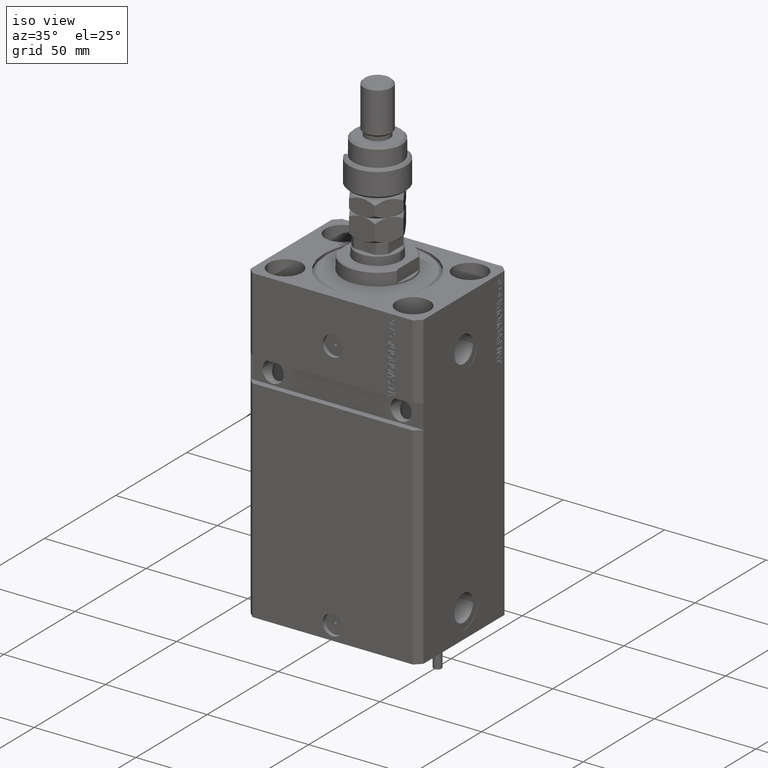
[diagram: clean part render]
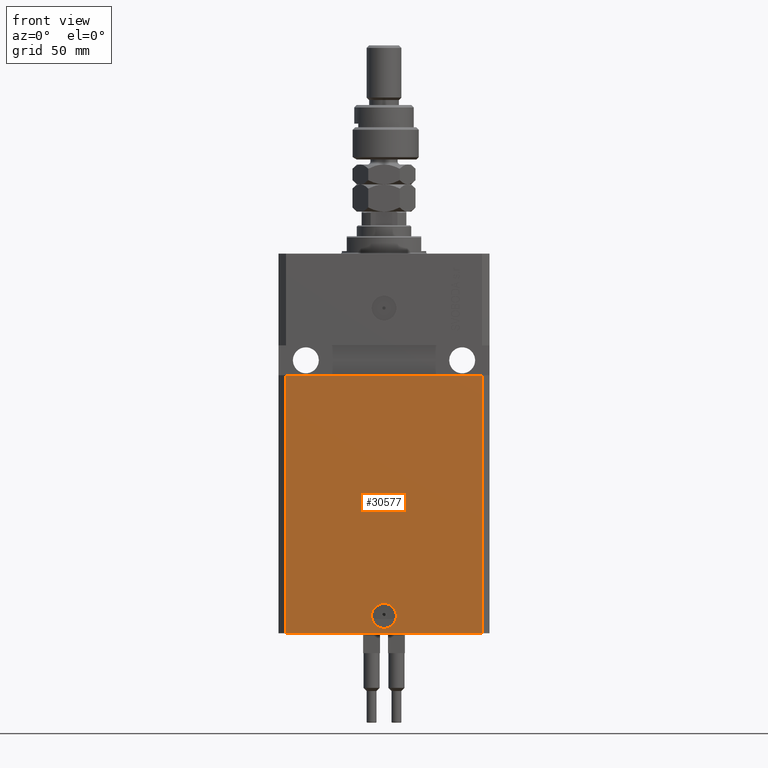
[diagram: tour spotlight — one face highlighted and labeled with its STEP entity id]
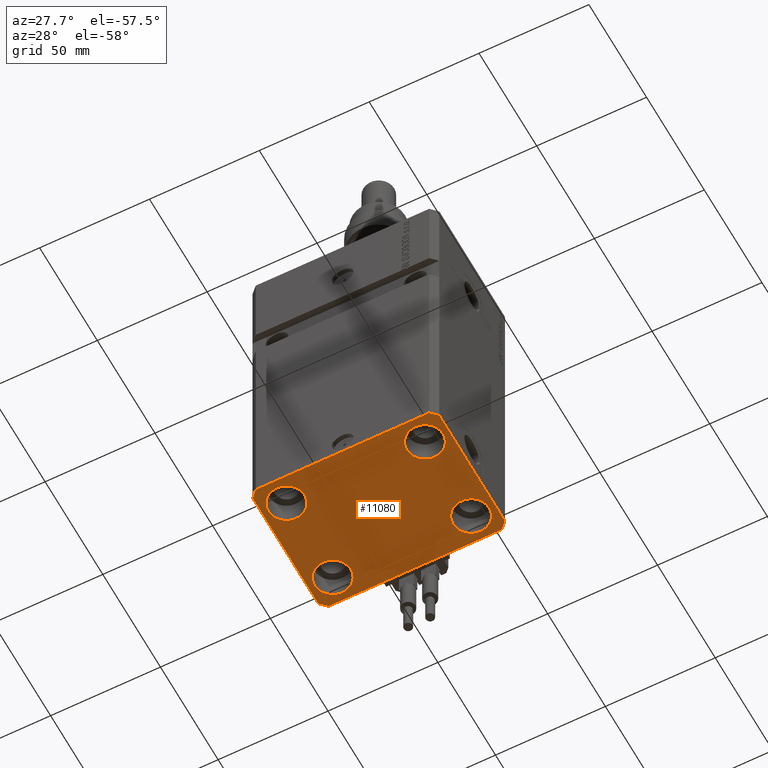
[diagram: tour spotlight — one face highlighted and labeled with its STEP entity id]
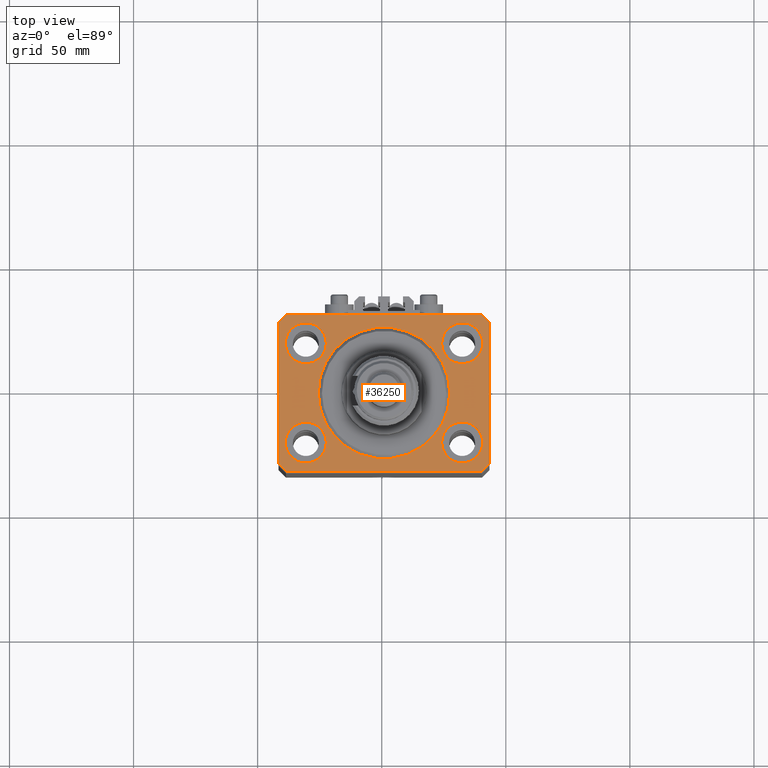
[diagram: tour spotlight — one face highlighted and labeled with its STEP entity id]
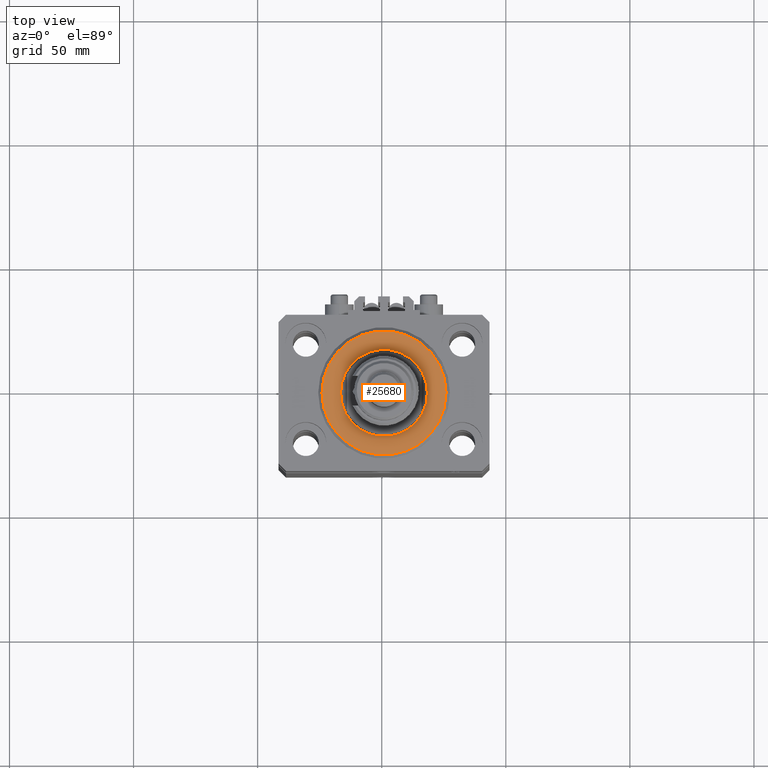
[diagram: tour spotlight — one face highlighted and labeled with its STEP entity id]
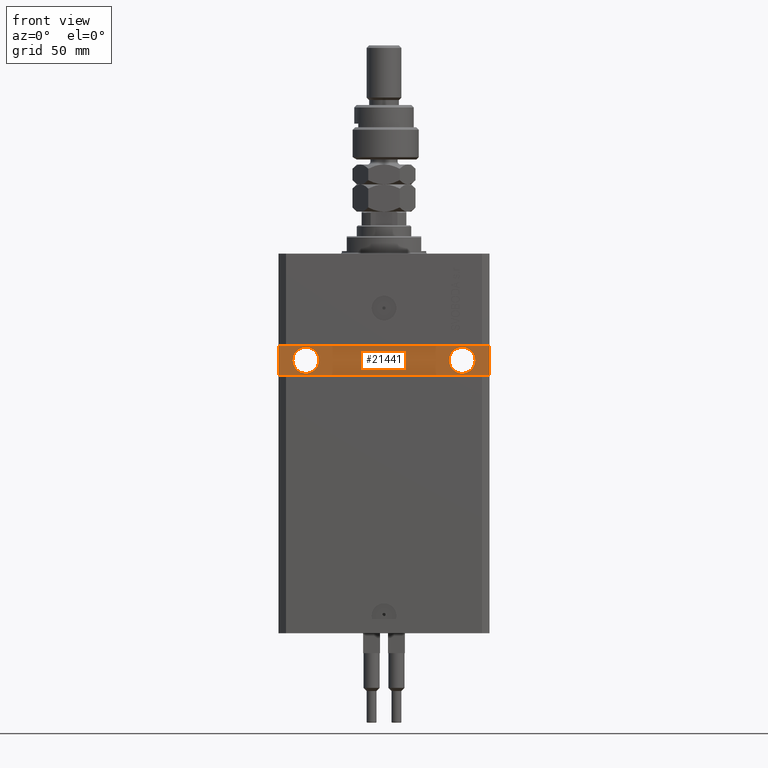
[diagram: tour spotlight — one face highlighted and labeled with its STEP entity id]
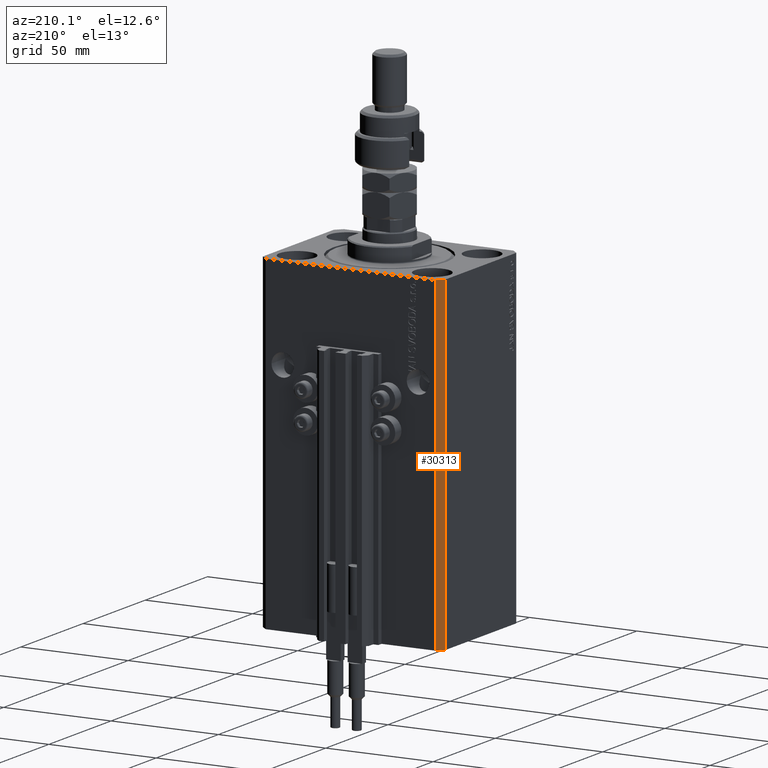
[diagram: tour spotlight — one face highlighted and labeled with its STEP entity id]
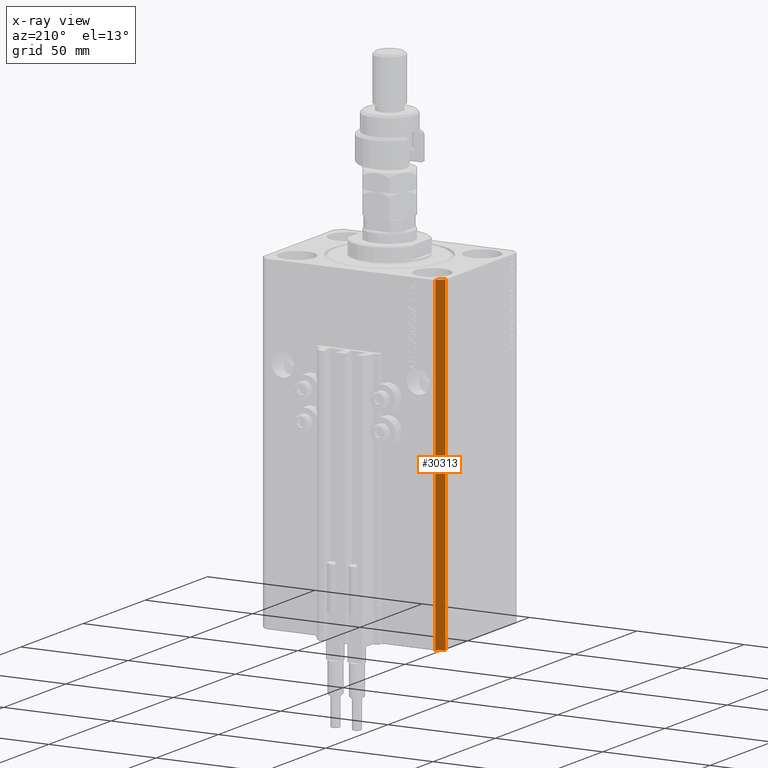
[diagram: x-ray of the same camera — body ghosted, this tour face saturated]
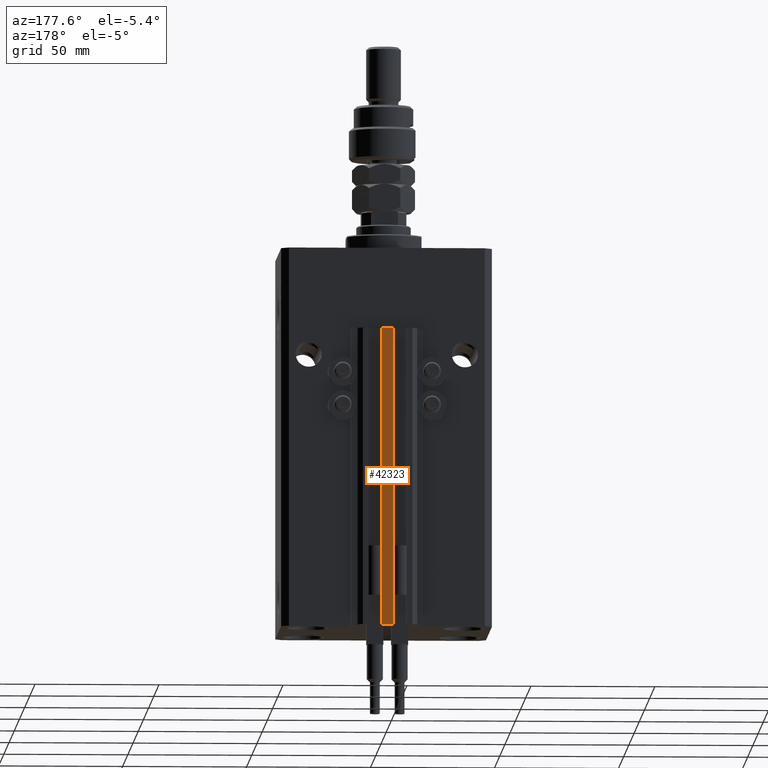
[diagram: tour spotlight — one face highlighted and labeled with its STEP entity id]
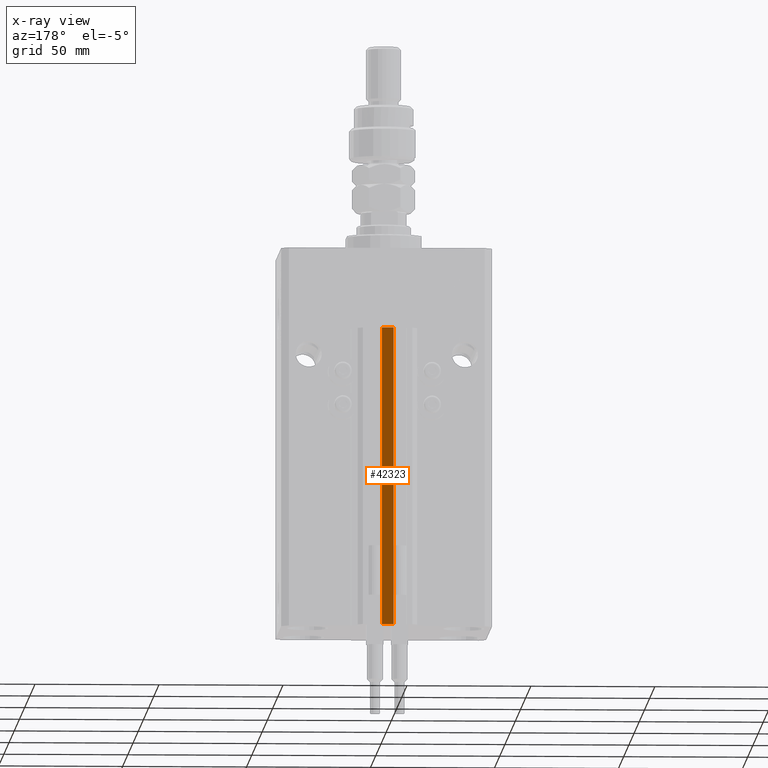
[diagram: x-ray of the same camera — body ghosted, this tour face saturated]
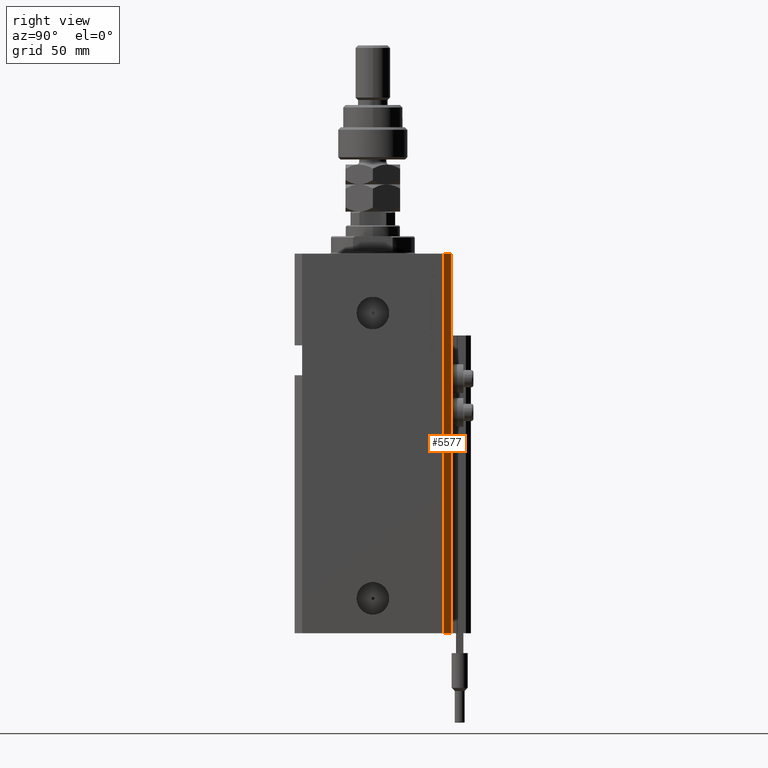
[diagram: tour spotlight — one face highlighted and labeled with its STEP entity id]
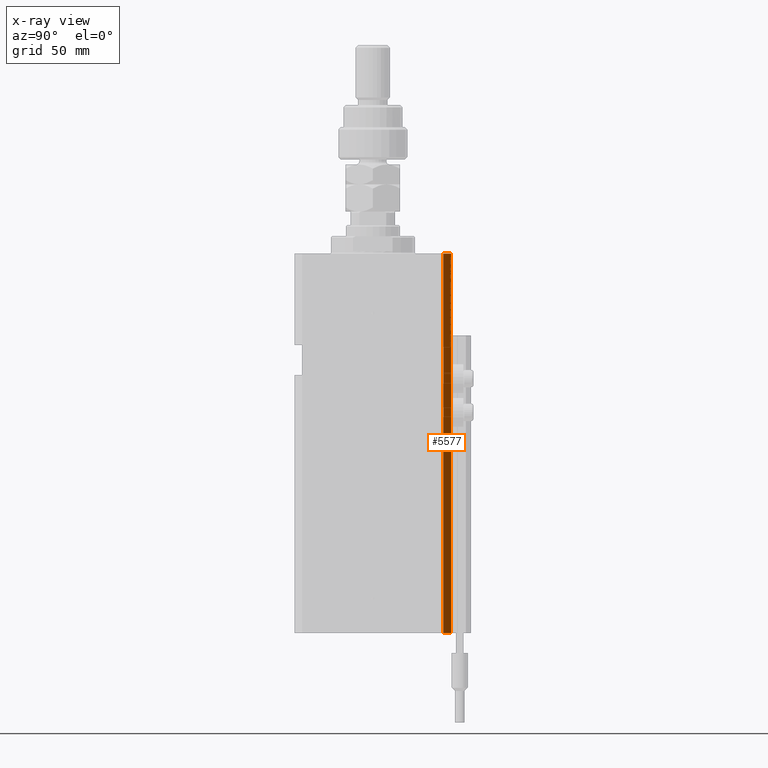
[diagram: x-ray of the same camera — body ghosted, this tour face saturated]
A machine part: a face-by-face anatomy tour. The part has 1224 B-rep faces; the first image is the clean iso view, then the 8 largest visible faces are spotlighted one at a time (largest first), each with its STEP entity span.

Face 1 — front view, entity #30577. In plain terms, the highlighted planar face has unit normal (0, -1, 0).
Definition (entity closure, byte-faithful):
#820 = VERTEX_POINT ( 'NONE', #39090 ) ;
#856 = CARTESIAN_POINT ( 'NONE',  ( -5.000000000000006217, -31.50000000000000000, -146.0000000000000000 ) ) ;
#5107 = DIRECTION ( 'NONE',  ( 1.000000000000000000, 0.000000000000000000, 0.000000000000000000 ) ) ;
#5143 = VECTOR ( 'NONE', #5107, 1000.000000000000000 ) ;
#5194 = DIRECTION ( 'NONE',  ( 0.000000000000000000, -1.000000000000000000, 0.000000000000000000 ) ) ;
#7426 = CARTESIAN_POINT ( 'NONE',  ( 0.000000000000000000, -31.50000000000000000, -146.0000000000000000 ) ) ;
#9163 = VERTEX_POINT ( 'NONE', #40405 ) ;
#9230 = VECTOR ( 'NONE', #47603, 1000.000000000000000 ) ;
#9306 = DIRECTION ( 'NONE',  ( 1.176083712526788232E-16, -1.000000000000000000, 0.000000000000000000 ) ) ;
#10176 = VECTOR ( 'NONE', #38440, 1000.000000000000000 ) ;
#10930 = LINE ( 'NONE', #19434, #10176 ) ;
#11315 = DIRECTION ( 'NONE',  ( 1.176083712526788232E-16, -1.000000000000000000, 0.000000000000000000 ) ) ;
#11379 = ORIENTED_EDGE ( 'NONE', *, *, #31789, .F. ) ;
#13017 = EDGE_CURVE ( 'NONE', #23649, #9163, #15967, .T. ) ;
#13241 = PLANE ( 'NONE',  #16018 ) ;
#13508 = VECTOR ( 'NONE', #19572, 1000.000000000000000 ) ;
#14425 = ORIENTED_EDGE ( 'NONE', *, *, #13017, .F. ) ;
#15967 = LINE ( 'NONE', #51211, #9230 ) ;
#16018 = AXIS2_PLACEMENT_3D ( 'NONE', #43863, #5194, #32199 ) ;
#16533 = CARTESIAN_POINT ( 'NONE',  ( -39.50000000000000711, -31.50000000000000000, -153.0000000000000000 ) ) ;
#19434 = CARTESIAN_POINT ( 'NONE',  ( -42.50000000000001421, -31.50000000000000711, -48.99999999999999289 ) ) ;
#19572 = DIRECTION ( 'NONE',  ( 0.000000000000000000, 0.000000000000000000, 1.000000000000000000 ) ) ;
#20996 = CIRCLE ( 'NONE', #31801, 5.000000000000006217 ) ;
#23649 = VERTEX_POINT ( 'NONE', #45667 ) ;
#24094 = EDGE_CURVE ( 'NONE', #23649, #44985, #32107, .T. ) ;
#24910 = FACE_BOUND ( 'NONE', #51209, .T. ) ;
#25119 = DIRECTION ( 'NONE',  ( 1.000000000000000000, 0.000000000000000000, 0.000000000000000000 ) ) ;
#28144 = EDGE_CURVE ( 'NONE', #9163, #820, #10930, .T. ) ;
#28279 = ORIENTED_EDGE ( 'NONE', *, *, #28144, .F. ) ;
#28427 = ORIENTED_EDGE ( 'NONE', *, *, #24094, .T. ) ;
#29671 = EDGE_CURVE ( 'NONE', #44985, #820, #31282, .T. ) ;
#30577 = ADVANCED_FACE ( 'NONE', ( #24910, #40762 ), #13241, .T. ) ;
#31033 = DIRECTION ( 'NONE',  ( 1.000000000000000000, 0.000000000000000000, 0.000000000000000000 ) ) ;
#31062 = EDGE_CURVE ( 'NONE', #38098, #35242, #20996, .T. ) ;
#31282 = LINE ( 'NONE', #39855, #13508 ) ;
#31789 = EDGE_CURVE ( 'NONE', #35242, #38098, #34313, .T. ) ;
#31801 = AXIS2_PLACEMENT_3D ( 'NONE', #7426, #11315, #31033 ) ;
#32107 = LINE ( 'NONE', #16533, #5143 ) ;
#32199 = DIRECTION ( 'NONE',  ( 0.000000000000000000, -0.000000000000000000, -1.000000000000000000 ) ) ;
#34313 = CIRCLE ( 'NONE', #47562, 5.000000000000006217 ) ;
#35242 = VERTEX_POINT ( 'NONE', #856 ) ;
#36465 = ORIENTED_EDGE ( 'NONE', *, *, #31062, .F. ) ;
#38098 = VERTEX_POINT ( 'NONE', #41745 ) ;
#38440 = DIRECTION ( 'NONE',  ( 1.000000000000000000, 1.632680918566406054E-16, 1.632680918566406054E-16 ) ) ;
#39090 = CARTESIAN_POINT ( 'NONE',  ( 39.50000000000000000, -31.49999999999999289, -48.99999999999997868 ) ) ;
#39253 = ORIENTED_EDGE ( 'NONE', *, *, #29671, .T. ) ;
#39855 = CARTESIAN_POINT ( 'NONE',  ( 39.50000000000000711, -31.50000000000000000, -153.0000000000000000 ) ) ;
#40405 = CARTESIAN_POINT ( 'NONE',  ( -39.50000000000000000, -31.50000000000000711, -48.99999999999999289 ) ) ;
#40762 = FACE_OUTER_BOUND ( 'NONE', #50978, .T. ) ;
#41745 = CARTESIAN_POINT ( 'NONE',  ( 5.000000000000006217, -31.50000000000000000, -146.0000000000000000 ) ) ;
#43863 = CARTESIAN_POINT ( 'NONE',  ( -39.50000000000000711, -31.50000000000000000, -153.0000000000000000 ) ) ;
#44587 = CARTESIAN_POINT ( 'NONE',  ( 0.000000000000000000, -31.50000000000000000, -146.0000000000000000 ) ) ;
#44985 = VERTEX_POINT ( 'NONE', #48294 ) ;
#45667 = CARTESIAN_POINT ( 'NONE',  ( -39.50000000000000711, -31.50000000000000000, -153.0000000000000000 ) ) ;
#47562 = AXIS2_PLACEMENT_3D ( 'NONE', #44587, #9306, #25119 ) ;
#47603 = DIRECTION ( 'NONE',  ( 0.000000000000000000, 0.000000000000000000, 1.000000000000000000 ) ) ;
#48294 = CARTESIAN_POINT ( 'NONE',  ( 39.50000000000000711, -31.50000000000000000, -153.0000000000000000 ) ) ;
#50978 = EDGE_LOOP ( 'NONE', ( #28279, #14425, #28427, #39253 ) ) ;
#51209 = EDGE_LOOP ( 'NONE', ( #36465, #11379 ) ) ;
#51211 = CARTESIAN_POINT ( 'NONE',  ( -39.50000000000000711, -31.50000000000000000, -153.0000000000000000 ) ) ;

Face 2 — auxiliary view, entity #11080. In plain terms, the highlighted planar face has unit normal (0, 0, 1).
Definition (entity closure, byte-faithful):
#192 = VECTOR ( 'NONE', #44739, 1000.000000000000000 ) ;
#260 = CIRCLE ( 'NONE', #1123, 8.250000000000000000 ) ;
#401 = DIRECTION ( 'NONE',  ( -0.000000000000000000, -0.000000000000000000, 1.000000000000000000 ) ) ;
#419 = VERTEX_POINT ( 'NONE', #756 ) ;
#756 = CARTESIAN_POINT ( 'NONE',  ( -23.25000000000000000, 20.00000000000000000, -153.0000000000000000 ) ) ;
#762 = DIRECTION ( 'NONE',  ( -0.000000000000000000, -0.000000000000000000, 1.000000000000000000 ) ) ;
#872 = ORIENTED_EDGE ( 'NONE', *, *, #16954, .F. ) ;
#1123 = AXIS2_PLACEMENT_3D ( 'NONE', #44759, #5062, #17258 ) ;
#1175 = DIRECTION ( 'NONE',  ( 1.000000000000000000, 0.000000000000000000, 0.000000000000000000 ) ) ;
#1833 = ORIENTED_EDGE ( 'NONE', *, *, #30168, .F. ) ;
#2055 = DIRECTION ( 'NONE',  ( -0.000000000000000000, -0.000000000000000000, 1.000000000000000000 ) ) ;
#2136 = LINE ( 'NONE', #13558, #3282 ) ;
#2637 = DIRECTION ( 'NONE',  ( -1.000000000000000000, 0.000000000000000000, 0.000000000000000000 ) ) ;
#3020 = AXIS2_PLACEMENT_3D ( 'NONE', #37609, #2055, #49495 ) ;
#3261 = DIRECTION ( 'NONE',  ( 1.000000000000000000, 0.000000000000000000, 0.000000000000000000 ) ) ;
#3282 = VECTOR ( 'NONE', #25489, 1000.000000000000000 ) ;
#3390 = VECTOR ( 'NONE', #33579, 1000.000000000000000 ) ;
#3393 = LINE ( 'NONE', #15588, #3390 ) ;
#3452 = LINE ( 'NONE', #23945, #49141 ) ;
#4211 = VERTEX_POINT ( 'NONE', #10744 ) ;
#5053 = DIRECTION ( 'NONE',  ( -0.000000000000000000, -0.000000000000000000, 1.000000000000000000 ) ) ;
#5062 = DIRECTION ( 'NONE',  ( -0.000000000000000000, -0.000000000000000000, 1.000000000000000000 ) ) ;
#5104 = CIRCLE ( 'NONE', #26605, 8.250000000000000000 ) ;
#5107 = DIRECTION ( 'NONE',  ( 1.000000000000000000, 0.000000000000000000, 0.000000000000000000 ) ) ;
#5143 = VECTOR ( 'NONE', #5107, 1000.000000000000000 ) ;
#7049 = FACE_BOUND ( 'NONE', #32258, .T. ) ;
#7275 = EDGE_CURVE ( 'NONE', #13567, #34149, #49718, .T. ) ;
#7560 = FACE_OUTER_BOUND ( 'NONE', #41415, .T. ) ;
#7866 = DIRECTION ( 'NONE',  ( -0.7071067811865356934, 0.7071067811865594521, 0.000000000000000000 ) ) ;
#7978 = CARTESIAN_POINT ( 'NONE',  ( 31.50000000000000000, -20.00000000000000000, -153.0000000000000000 ) ) ;
#8783 = CARTESIAN_POINT ( 'NONE',  ( 31.50000000000000000, 20.00000000000001066, -153.0000000000000000 ) ) ;
#8839 = CIRCLE ( 'NONE', #3020, 8.250000000000000000 ) ;
#8946 = CARTESIAN_POINT ( 'NONE',  ( -31.50000000000000000, 20.00000000000000000, -153.0000000000000000 ) ) ;
#9815 = DIRECTION ( 'NONE',  ( -0.7071067811865471286, -0.7071067811865479058, 0.000000000000000000 ) ) ;
#9930 = CIRCLE ( 'NONE', #38936, 8.249999999999992895 ) ;
#10171 = EDGE_CURVE ( 'NONE', #20531, #4211, #2136, .T. ) ;
#10182 = AXIS2_PLACEMENT_3D ( 'NONE', #7978, #5053, #43271 ) ;
#10633 = EDGE_CURVE ( 'NONE', #44485, #29315, #9930, .T. ) ;
#10744 = CARTESIAN_POINT ( 'NONE',  ( 42.50000000000051870, 28.49999999999995381, -153.0000000000000000 ) ) ;
#11080 = ADVANCED_FACE ( 'NONE', ( #7049, #35320, #35070, #46488, #7560 ), #14835, .F. ) ;
#11663 = DIRECTION ( 'NONE',  ( -0.000000000000000000, -0.000000000000000000, 1.000000000000000000 ) ) ;
#11729 = VECTOR ( 'NONE', #2637, 1000.000000000000000 ) ;
#12267 = DIRECTION ( 'NONE',  ( 1.000000000000000000, 0.000000000000000000, 0.000000000000000000 ) ) ;
#12480 = LINE ( 'NONE', #33223, #50624 ) ;
#12506 = CIRCLE ( 'NONE', #41521, 8.249999999999992895 ) ;
#12916 = ORIENTED_EDGE ( 'NONE', *, *, #10633, .T. ) ;
#12975 = AXIS2_PLACEMENT_3D ( 'NONE', #47189, #11663, #23575 ) ;
#12991 = DIRECTION ( 'NONE',  ( 0.7071067811865483499, 0.7071067811865466846, 0.000000000000000000 ) ) ;
#13268 = EDGE_CURVE ( 'NONE', #23674, #23649, #3393, .T. ) ;
#13389 = VERTEX_POINT ( 'NONE', #32958 ) ;
#13558 = CARTESIAN_POINT ( 'NONE',  ( 42.50000000000000711, -28.50000000000000355, -153.0000000000000000 ) ) ;
#13567 = VERTEX_POINT ( 'NONE', #51282 ) ;
#14174 = DIRECTION ( 'NONE',  ( -0.000000000000000000, -0.000000000000000000, 1.000000000000000000 ) ) ;
#14835 = PLANE ( 'NONE',  #38966 ) ;
#15588 = CARTESIAN_POINT ( 'NONE',  ( -42.50000000000000000, -28.50000000000000000, -153.0000000000000000 ) ) ;
#16533 = CARTESIAN_POINT ( 'NONE',  ( -39.50000000000000711, -31.50000000000000000, -153.0000000000000000 ) ) ;
#16726 = EDGE_CURVE ( 'NONE', #29315, #44485, #12506, .T. ) ;
#16954 = EDGE_CURVE ( 'NONE', #19072, #13567, #18196, .T. ) ;
#17258 = DIRECTION ( 'NONE',  ( 1.000000000000000000, 0.000000000000000000, 0.000000000000000000 ) ) ;
#17376 = EDGE_CURVE ( 'NONE', #17623, #41520, #5104, .T. ) ;
#17623 = VERTEX_POINT ( 'NONE', #50646 ) ;
#18196 = LINE ( 'NONE', #41324, #11729 ) ;
#19072 = VERTEX_POINT ( 'NONE', #41362 ) ;
#19462 = DIRECTION ( 'NONE',  ( 0.000000000000000000, 0.000000000000000000, 1.000000000000000000 ) ) ;
#20082 = CARTESIAN_POINT ( 'NONE',  ( -42.50000000000000000, 28.50000000000000000, -153.0000000000000000 ) ) ;
#20149 = CIRCLE ( 'NONE', #45066, 8.250000000000000000 ) ;
#20531 = VERTEX_POINT ( 'NONE', #44095 ) ;
#20543 = CARTESIAN_POINT ( 'NONE',  ( 39.74999999999999289, -20.00000000000000000, -153.0000000000000000 ) ) ;
#22130 = ORIENTED_EDGE ( 'NONE', *, *, #13268, .F. ) ;
#22228 = CARTESIAN_POINT ( 'NONE',  ( -39.50000000000000711, 31.50000000000000000, -153.0000000000000000 ) ) ;
#22346 = ORIENTED_EDGE ( 'NONE', *, *, #10171, .F. ) ;
#22550 = CARTESIAN_POINT ( 'NONE',  ( -42.50000000000000000, -28.50000000000000000, -153.0000000000000000 ) ) ;
#22602 = EDGE_CURVE ( 'NONE', #44985, #20531, #12480, .T. ) ;
#23575 = DIRECTION ( 'NONE',  ( 1.000000000000000000, 0.000000000000000000, 0.000000000000000000 ) ) ;
#23649 = VERTEX_POINT ( 'NONE', #45667 ) ;
#23674 = VERTEX_POINT ( 'NONE', #22550 ) ;
#23945 = CARTESIAN_POINT ( 'NONE',  ( 42.50000000000051870, 28.49999999999995381, -153.0000000000000000 ) ) ;
#24094 = EDGE_CURVE ( 'NONE', #23649, #44985, #32107, .T. ) ;
#24129 = ORIENTED_EDGE ( 'NONE', *, *, #24458, .F. ) ;
#24458 = EDGE_CURVE ( 'NONE', #34149, #23674, #32810, .T. ) ;
#25475 = EDGE_CURVE ( 'NONE', #45854, #32121, #25908, .T. ) ;
#25489 = DIRECTION ( 'NONE',  ( 8.886653596232072440E-15, 1.000000000000000000, 0.000000000000000000 ) ) ;
#25679 = ORIENTED_EDGE ( 'NONE', *, *, #49794, .T. ) ;
#25908 = CIRCLE ( 'NONE', #10182, 8.249999999999992895 ) ;
#26570 = EDGE_CURVE ( 'NONE', #13389, #419, #260, .T. ) ;
#26605 = AXIS2_PLACEMENT_3D ( 'NONE', #38826, #14174, #3261 ) ;
#26760 = CARTESIAN_POINT ( 'NONE',  ( -23.25000000000000000, -20.00000000000000000, -153.0000000000000000 ) ) ;
#27034 = CIRCLE ( 'NONE', #12975, 8.249999999999992895 ) ;
#27275 = CARTESIAN_POINT ( 'NONE',  ( 0.000000000000000000, 0.000000000000000000, -153.0000000000000000 ) ) ;
#27292 = CARTESIAN_POINT ( 'NONE',  ( -42.50000000000000000, 28.50000000000000000, -153.0000000000000000 ) ) ;
#27542 = EDGE_CURVE ( 'NONE', #419, #13389, #20149, .T. ) ;
#27825 = DIRECTION ( 'NONE',  ( -0.000000000000000000, -0.000000000000000000, 1.000000000000000000 ) ) ;
#28138 = ORIENTED_EDGE ( 'NONE', *, *, #24094, .F. ) ;
#29315 = VERTEX_POINT ( 'NONE', #51276 ) ;
#30168 = EDGE_CURVE ( 'NONE', #4211, #19072, #3452, .T. ) ;
#32107 = LINE ( 'NONE', #16533, #5143 ) ;
#32121 = VERTEX_POINT ( 'NONE', #35976 ) ;
#32148 = DIRECTION ( 'NONE',  ( 1.000000000000000000, 0.000000000000000000, 0.000000000000000000 ) ) ;
#32258 = EDGE_LOOP ( 'NONE', ( #43548, #25679 ) ) ;
#32810 = LINE ( 'NONE', #20082, #192 ) ;
#32958 = CARTESIAN_POINT ( 'NONE',  ( -39.75000000000000000, 20.00000000000000000, -153.0000000000000000 ) ) ;
#33223 = CARTESIAN_POINT ( 'NONE',  ( 39.50000000000000711, -31.50000000000000000, -153.0000000000000000 ) ) ;
#33579 = DIRECTION ( 'NONE',  ( 0.7071067811865471286, -0.7071067811865479058, 0.000000000000000000 ) ) ;
#33785 = ORIENTED_EDGE ( 'NONE', *, *, #7275, .F. ) ;
#34149 = VERTEX_POINT ( 'NONE', #27292 ) ;
#34685 = ORIENTED_EDGE ( 'NONE', *, *, #25475, .T. ) ;
#34852 = CARTESIAN_POINT ( 'NONE',  ( 31.50000000000000000, 20.00000000000001066, -153.0000000000000000 ) ) ;
#35070 = FACE_BOUND ( 'NONE', #40203, .T. ) ;
#35320 = FACE_BOUND ( 'NONE', #41509, .T. ) ;
#35976 = CARTESIAN_POINT ( 'NONE',  ( 23.25000000000000355, -20.00000000000000000, -153.0000000000000000 ) ) ;
#36401 = EDGE_LOOP ( 'NONE', ( #38969, #42184 ) ) ;
#37030 = CARTESIAN_POINT ( 'NONE',  ( 39.74999999999999289, 20.00000000000001066, -153.0000000000000000 ) ) ;
#37079 = EDGE_CURVE ( 'NONE', #32121, #45854, #27034, .T. ) ;
#37609 = CARTESIAN_POINT ( 'NONE',  ( -31.50000000000000000, -20.00000000000000000, -153.0000000000000000 ) ) ;
#38826 = CARTESIAN_POINT ( 'NONE',  ( -31.50000000000000000, -20.00000000000000000, -153.0000000000000000 ) ) ;
#38936 = AXIS2_PLACEMENT_3D ( 'NONE', #8783, #762, #32148 ) ;
#38966 = AXIS2_PLACEMENT_3D ( 'NONE', #27275, #19462, #39488 ) ;
#38969 = ORIENTED_EDGE ( 'NONE', *, *, #26570, .T. ) ;
#39488 = DIRECTION ( 'NONE',  ( 1.000000000000000000, 0.000000000000000000, -0.000000000000000000 ) ) ;
#40203 = EDGE_LOOP ( 'NONE', ( #41126, #12916 ) ) ;
#41126 = ORIENTED_EDGE ( 'NONE', *, *, #16726, .T. ) ;
#41324 = CARTESIAN_POINT ( 'NONE',  ( 39.50000000000056843, 31.50000000000000000, -153.0000000000000000 ) ) ;
#41362 = CARTESIAN_POINT ( 'NONE',  ( 39.50000000000056843, 31.50000000000000000, -153.0000000000000000 ) ) ;
#41415 = EDGE_LOOP ( 'NONE', ( #872, #1833, #22346, #46811, #28138, #22130, #24129, #33785 ) ) ;
#41509 = EDGE_LOOP ( 'NONE', ( #45004, #34685 ) ) ;
#41520 = VERTEX_POINT ( 'NONE', #26760 ) ;
#41521 = AXIS2_PLACEMENT_3D ( 'NONE', #34852, #27825, #12267 ) ;
#42184 = ORIENTED_EDGE ( 'NONE', *, *, #27542, .T. ) ;
#43271 = DIRECTION ( 'NONE',  ( 1.000000000000000000, 0.000000000000000000, 0.000000000000000000 ) ) ;
#43548 = ORIENTED_EDGE ( 'NONE', *, *, #17376, .T. ) ;
#44095 = CARTESIAN_POINT ( 'NONE',  ( 42.50000000000000711, -28.50000000000000355, -153.0000000000000000 ) ) ;
#44485 = VERTEX_POINT ( 'NONE', #37030 ) ;
#44739 = DIRECTION ( 'NONE',  ( 0.000000000000000000, -1.000000000000000000, 0.000000000000000000 ) ) ;
#44759 = CARTESIAN_POINT ( 'NONE',  ( -31.50000000000000000, 20.00000000000000000, -153.0000000000000000 ) ) ;
#44985 = VERTEX_POINT ( 'NONE', #48294 ) ;
#45004 = ORIENTED_EDGE ( 'NONE', *, *, #37079, .T. ) ;
#45066 = AXIS2_PLACEMENT_3D ( 'NONE', #8946, #401, #1175 ) ;
#45667 = CARTESIAN_POINT ( 'NONE',  ( -39.50000000000000711, -31.50000000000000000, -153.0000000000000000 ) ) ;
#45854 = VERTEX_POINT ( 'NONE', #20543 ) ;
#46488 = FACE_BOUND ( 'NONE', #36401, .T. ) ;
#46811 = ORIENTED_EDGE ( 'NONE', *, *, #22602, .F. ) ;
#47189 = CARTESIAN_POINT ( 'NONE',  ( 31.50000000000000000, -20.00000000000000000, -153.0000000000000000 ) ) ;
#48294 = CARTESIAN_POINT ( 'NONE',  ( 39.50000000000000711, -31.50000000000000000, -153.0000000000000000 ) ) ;
#49141 = VECTOR ( 'NONE', #7866, 1000.000000000000114 ) ;
#49495 = DIRECTION ( 'NONE',  ( 1.000000000000000000, 0.000000000000000000, 0.000000000000000000 ) ) ;
#49718 = LINE ( 'NONE', #22228, #51208 ) ;
#49794 = EDGE_CURVE ( 'NONE', #41520, #17623, #8839, .T. ) ;
#50624 = VECTOR ( 'NONE', #12991, 1000.000000000000000 ) ;
#50646 = CARTESIAN_POINT ( 'NONE',  ( -39.75000000000000000, -20.00000000000000000, -153.0000000000000000 ) ) ;
#51208 = VECTOR ( 'NONE', #9815, 1000.000000000000000 ) ;
#51276 = CARTESIAN_POINT ( 'NONE',  ( 23.25000000000000355, 20.00000000000001066, -153.0000000000000000 ) ) ;
#51282 = CARTESIAN_POINT ( 'NONE',  ( -39.50000000000000711, 31.50000000000000000, -153.0000000000000000 ) ) ;

Face 3 — top view, entity #36250. In plain terms, the highlighted planar face has unit normal (0, 0, 1).
Definition (entity closure, byte-faithful):
#282 = CARTESIAN_POINT ( 'NONE',  ( 39.74999999999999289, -20.00000000000000000, 0.000000000000000000 ) ) ;
#420 = EDGE_CURVE ( 'NONE', #8402, #24802, #36293, .T. ) ;
#677 = EDGE_CURVE ( 'NONE', #6530, #18262, #25865, .T. ) ;
#774 = CARTESIAN_POINT ( 'NONE',  ( 0.000000000000000000, 0.000000000000000000, 0.000000000000000000 ) ) ;
#1198 = CARTESIAN_POINT ( 'NONE',  ( 31.50000000000000000, -20.00000000000000000, 0.000000000000000000 ) ) ;
#1396 = CARTESIAN_POINT ( 'NONE',  ( -39.75000000000000000, -20.00000000000000000, 0.000000000000000000 ) ) ;
#1399 = DIRECTION ( 'NONE',  ( 0.000000000000000000, 0.000000000000000000, 1.000000000000000000 ) ) ;
#1724 = CARTESIAN_POINT ( 'NONE',  ( 31.50000000000000000, 20.00000000000001066, 0.000000000000000000 ) ) ;
#1886 = ORIENTED_EDGE ( 'NONE', *, *, #26913, .F. ) ;
#1898 = VERTEX_POINT ( 'NONE', #19113 ) ;
#1923 = CIRCLE ( 'NONE', #8545, 8.250000000000000000 ) ;
#2016 = DIRECTION ( 'NONE',  ( 0.7071067811865483499, 0.7071067811865466846, 0.000000000000000000 ) ) ;
#2217 = CARTESIAN_POINT ( 'NONE',  ( 42.50000000000051870, 28.49999999999995381, 0.000000000000000000 ) ) ;
#2740 = LINE ( 'NONE', #42183, #37074 ) ;
#3176 = DIRECTION ( 'NONE',  ( 0.000000000000000000, 0.000000000000000000, 1.000000000000000000 ) ) ;
#3741 = AXIS2_PLACEMENT_3D ( 'NONE', #11219, #3176, #11731 ) ;
#4237 = ORIENTED_EDGE ( 'NONE', *, *, #9257, .F. ) ;
#4274 = CARTESIAN_POINT ( 'NONE',  ( 26.50000000000000355, 0.000000000000000000, 0.000000000000000000 ) ) ;
#4376 = PLANE ( 'NONE',  #34492 ) ;
#4398 = DIRECTION ( 'NONE',  ( -1.000000000000000000, 0.000000000000000000, 0.000000000000000000 ) ) ;
#5009 = VERTEX_POINT ( 'NONE', #16872 ) ;
#5036 = VERTEX_POINT ( 'NONE', #32701 ) ;
#5791 = DIRECTION ( 'NONE',  ( 1.000000000000000000, 0.000000000000000000, 0.000000000000000000 ) ) ;
#6264 = DIRECTION ( 'NONE',  ( 0.000000000000000000, 0.000000000000000000, 1.000000000000000000 ) ) ;
#6530 = VERTEX_POINT ( 'NONE', #28174 ) ;
#6552 = CIRCLE ( 'NONE', #16486, 8.250000000000000000 ) ;
#7164 = CARTESIAN_POINT ( 'NONE',  ( 39.50000000000000711, -31.50000000000000000, 0.000000000000000000 ) ) ;
#7442 = CARTESIAN_POINT ( 'NONE',  ( -39.50000000000000711, 31.50000000000000000, 0.000000000000000000 ) ) ;
#7597 = EDGE_CURVE ( 'NONE', #10886, #35432, #14771, .T. ) ;
#8402 = VERTEX_POINT ( 'NONE', #2217 ) ;
#8545 = AXIS2_PLACEMENT_3D ( 'NONE', #31714, #35865, #40802 ) ;
#8650 = EDGE_CURVE ( 'NONE', #42339, #47286, #6552, .T. ) ;
#8653 = AXIS2_PLACEMENT_3D ( 'NONE', #31626, #31366, #47429 ) ;
#8950 = EDGE_LOOP ( 'NONE', ( #1886, #26711 ) ) ;
#9257 = EDGE_CURVE ( 'NONE', #35432, #10886, #9896, .T. ) ;
#9896 = CIRCLE ( 'NONE', #21456, 8.249999999999992895 ) ;
#10534 = DIRECTION ( 'NONE',  ( 0.000000000000000000, -1.000000000000000000, 0.000000000000000000 ) ) ;
#10830 = DIRECTION ( 'NONE',  ( 1.000000000000000000, 0.000000000000000000, 0.000000000000000000 ) ) ;
#10886 = VERTEX_POINT ( 'NONE', #31819 ) ;
#11219 = CARTESIAN_POINT ( 'NONE',  ( 0.000000000000000000, 0.000000000000000000, 0.000000000000000000 ) ) ;
#11577 = EDGE_CURVE ( 'NONE', #1898, #6530, #42235, .T. ) ;
#11731 = DIRECTION ( 'NONE',  ( 1.000000000000000000, 0.000000000000000000, 0.000000000000000000 ) ) ;
#11880 = ORIENTED_EDGE ( 'NONE', *, *, #29516, .T. ) ;
#12101 = VERTEX_POINT ( 'NONE', #24751 ) ;
#12144 = VECTOR ( 'NONE', #24077, 1000.000000000000114 ) ;
#12191 = CARTESIAN_POINT ( 'NONE',  ( 23.25000000000000355, 20.00000000000001066, 0.000000000000000000 ) ) ;
#12243 = DIRECTION ( 'NONE',  ( -0.7071067811865471286, -0.7071067811865479058, 0.000000000000000000 ) ) ;
#12419 = VECTOR ( 'NONE', #12243, 1000.000000000000000 ) ;
#12766 = CARTESIAN_POINT ( 'NONE',  ( 39.50000000000056843, 31.50000000000000000, 0.000000000000000000 ) ) ;
#13120 = DIRECTION ( 'NONE',  ( 1.000000000000000000, 0.000000000000000000, 0.000000000000000000 ) ) ;
#13577 = CARTESIAN_POINT ( 'NONE',  ( -23.25000000000000000, -20.00000000000000000, 0.000000000000000000 ) ) ;
#14019 = EDGE_CURVE ( 'NONE', #30269, #17068, #20011, .T. ) ;
#14164 = LINE ( 'NONE', #41937, #22416 ) ;
#14771 = CIRCLE ( 'NONE', #35521, 8.249999999999992895 ) ;
#14793 = DIRECTION ( 'NONE',  ( 0.000000000000000000, 0.000000000000000000, 1.000000000000000000 ) ) ;
#15192 = LINE ( 'NONE', #30776, #38369 ) ;
#15582 = DIRECTION ( 'NONE',  ( 1.000000000000000000, 0.000000000000000000, 0.000000000000000000 ) ) ;
#15597 = CARTESIAN_POINT ( 'NONE',  ( 31.50000000000000000, 20.00000000000001066, 0.000000000000000000 ) ) ;
#15776 = EDGE_CURVE ( 'NONE', #5036, #5009, #14164, .T. ) ;
#16060 = FACE_BOUND ( 'NONE', #8950, .T. ) ;
#16486 = AXIS2_PLACEMENT_3D ( 'NONE', #25000, #1399, #5791 ) ;
#16509 = ORIENTED_EDGE ( 'NONE', *, *, #7597, .F. ) ;
#16581 = DIRECTION ( 'NONE',  ( 1.000000000000000000, 0.000000000000000000, -0.000000000000000000 ) ) ;
#16872 = CARTESIAN_POINT ( 'NONE',  ( -42.50000000000000000, -28.50000000000000000, 0.000000000000000000 ) ) ;
#17068 = VERTEX_POINT ( 'NONE', #282 ) ;
#17096 = EDGE_CURVE ( 'NONE', #12101, #24400, #41559, .T. ) ;
#17539 = DIRECTION ( 'NONE',  ( 1.000000000000000000, 0.000000000000000000, 0.000000000000000000 ) ) ;
#18001 = ORIENTED_EDGE ( 'NONE', *, *, #43686, .F. ) ;
#18175 = DIRECTION ( 'NONE',  ( 1.000000000000000000, 0.000000000000000000, 0.000000000000000000 ) ) ;
#18262 = VERTEX_POINT ( 'NONE', #24417 ) ;
#19113 = CARTESIAN_POINT ( 'NONE',  ( -39.50000000000000711, -31.50000000000000000, 0.000000000000000000 ) ) ;
#19189 = CARTESIAN_POINT ( 'NONE',  ( 0.000000000000000000, 0.000000000000000000, 0.000000000000000000 ) ) ;
#19442 = EDGE_LOOP ( 'NONE', ( #38136, #26589 ) ) ;
#19719 = DIRECTION ( 'NONE',  ( 1.000000000000000000, 0.000000000000000000, 0.000000000000000000 ) ) ;
#20011 = CIRCLE ( 'NONE', #48156, 8.249999999999992895 ) ;
#21048 = DIRECTION ( 'NONE',  ( 1.000000000000000000, 0.000000000000000000, 0.000000000000000000 ) ) ;
#21093 = ORIENTED_EDGE ( 'NONE', *, *, #37668, .T. ) ;
#21403 = CIRCLE ( 'NONE', #23024, 8.249999999999992895 ) ;
#21456 = AXIS2_PLACEMENT_3D ( 'NONE', #1724, #41674, #17539 ) ;
#22298 = AXIS2_PLACEMENT_3D ( 'NONE', #37175, #6264, #21048 ) ;
#22416 = VECTOR ( 'NONE', #10534, 1000.000000000000000 ) ;
#22706 = DIRECTION ( 'NONE',  ( 0.7071067811865471286, -0.7071067811865479058, 0.000000000000000000 ) ) ;
#22765 = CIRCLE ( 'NONE', #3741, 26.50000000000000355 ) ;
#23024 = AXIS2_PLACEMENT_3D ( 'NONE', #46191, #14793, #18175 ) ;
#23884 = DIRECTION ( 'NONE',  ( 0.000000000000000000, 0.000000000000000000, 1.000000000000000000 ) ) ;
#24077 = DIRECTION ( 'NONE',  ( -0.7071067811865356934, 0.7071067811865594521, 0.000000000000000000 ) ) ;
#24116 = LINE ( 'NONE', #39963, #32847 ) ;
#24141 = EDGE_LOOP ( 'NONE', ( #16509, #4237 ) ) ;
#24400 = VERTEX_POINT ( 'NONE', #4274 ) ;
#24417 = CARTESIAN_POINT ( 'NONE',  ( 42.50000000000000711, -28.50000000000000355, 0.000000000000000000 ) ) ;
#24531 = VERTEX_POINT ( 'NONE', #49356 ) ;
#24617 = FACE_BOUND ( 'NONE', #40243, .T. ) ;
#24751 = CARTESIAN_POINT ( 'NONE',  ( -26.50000000000000355, 3.245314017740485765E-15, 0.000000000000000000 ) ) ;
#24795 = CIRCLE ( 'NONE', #22298, 8.250000000000000000 ) ;
#24802 = VERTEX_POINT ( 'NONE', #12766 ) ;
#24888 = VECTOR ( 'NONE', #10830, 1000.000000000000000 ) ;
#25000 = CARTESIAN_POINT ( 'NONE',  ( -31.50000000000000000, -20.00000000000000000, 0.000000000000000000 ) ) ;
#25576 = ORIENTED_EDGE ( 'NONE', *, *, #14019, .F. ) ;
#25865 = LINE ( 'NONE', #7164, #39539 ) ;
#26589 = ORIENTED_EDGE ( 'NONE', *, *, #17096, .F. ) ;
#26711 = ORIENTED_EDGE ( 'NONE', *, *, #31717, .F. ) ;
#26913 = EDGE_CURVE ( 'NONE', #24531, #44023, #1923, .T. ) ;
#27534 = CARTESIAN_POINT ( 'NONE',  ( -39.50000000000000711, 31.50000000000000000, 0.000000000000000000 ) ) ;
#27977 = CARTESIAN_POINT ( 'NONE',  ( 42.50000000000051870, 28.49999999999995381, 0.000000000000000000 ) ) ;
#28174 = CARTESIAN_POINT ( 'NONE',  ( 39.50000000000000711, -31.50000000000000000, 0.000000000000000000 ) ) ;
#28430 = ORIENTED_EDGE ( 'NONE', *, *, #49460, .T. ) ;
#29516 = EDGE_CURVE ( 'NONE', #5009, #1898, #15192, .T. ) ;
#30269 = VERTEX_POINT ( 'NONE', #48560 ) ;
#30776 = CARTESIAN_POINT ( 'NONE',  ( -42.50000000000000000, -28.50000000000000000, 0.000000000000000000 ) ) ;
#31060 = CARTESIAN_POINT ( 'NONE',  ( -39.75000000000000000, 20.00000000000000000, 0.000000000000000000 ) ) ;
#31366 = DIRECTION ( 'NONE',  ( 0.000000000000000000, 0.000000000000000000, 1.000000000000000000 ) ) ;
#31626 = CARTESIAN_POINT ( 'NONE',  ( -31.50000000000000000, 20.00000000000000000, 0.000000000000000000 ) ) ;
#31714 = CARTESIAN_POINT ( 'NONE',  ( -31.50000000000000000, 20.00000000000000000, 0.000000000000000000 ) ) ;
#31717 = EDGE_CURVE ( 'NONE', #44023, #24531, #48410, .T. ) ;
#31738 = ORIENTED_EDGE ( 'NONE', *, *, #420, .T. ) ;
#31819 = CARTESIAN_POINT ( 'NONE',  ( 39.74999999999999289, 20.00000000000001066, 0.000000000000000000 ) ) ;
#32566 = ORIENTED_EDGE ( 'NONE', *, *, #15776, .T. ) ;
#32701 = CARTESIAN_POINT ( 'NONE',  ( -42.50000000000000000, 28.50000000000000000, 0.000000000000000000 ) ) ;
#32847 = VECTOR ( 'NONE', #4398, 1000.000000000000000 ) ;
#33986 = EDGE_LOOP ( 'NONE', ( #28430, #44223, #32566, #11880, #49196, #45245, #21093, #31738 ) ) ;
#34212 = EDGE_CURVE ( 'NONE', #24400, #12101, #22765, .T. ) ;
#34492 = AXIS2_PLACEMENT_3D ( 'NONE', #774, #36043, #16581 ) ;
#35432 = VERTEX_POINT ( 'NONE', #12191 ) ;
#35521 = AXIS2_PLACEMENT_3D ( 'NONE', #15597, #23884, #19719 ) ;
#35788 = FACE_BOUND ( 'NONE', #43342, .T. ) ;
#35865 = DIRECTION ( 'NONE',  ( 0.000000000000000000, 0.000000000000000000, 1.000000000000000000 ) ) ;
#36043 = DIRECTION ( 'NONE',  ( 0.000000000000000000, 0.000000000000000000, 1.000000000000000000 ) ) ;
#36250 = ADVANCED_FACE ( 'NONE', ( #24617, #35788, #40716, #16060, #40200, #36312 ), #4376, .T. ) ;
#36293 = LINE ( 'NONE', #27977, #12144 ) ;
#36312 = FACE_OUTER_BOUND ( 'NONE', #33986, .T. ) ;
#37074 = VECTOR ( 'NONE', #46320, 1000.000000000000000 ) ;
#37175 = CARTESIAN_POINT ( 'NONE',  ( -31.50000000000000000, -20.00000000000000000, 0.000000000000000000 ) ) ;
#37668 = EDGE_CURVE ( 'NONE', #18262, #8402, #2740, .T. ) ;
#38136 = ORIENTED_EDGE ( 'NONE', *, *, #34212, .F. ) ;
#38239 = ORIENTED_EDGE ( 'NONE', *, *, #8650, .F. ) ;
#38369 = VECTOR ( 'NONE', #22706, 1000.000000000000000 ) ;
#39069 = AXIS2_PLACEMENT_3D ( 'NONE', #19189, #43088, #15582 ) ;
#39236 = ORIENTED_EDGE ( 'NONE', *, *, #46013, .F. ) ;
#39539 = VECTOR ( 'NONE', #2016, 1000.000000000000000 ) ;
#39803 = VERTEX_POINT ( 'NONE', #7442 ) ;
#39963 = CARTESIAN_POINT ( 'NONE',  ( 39.50000000000056843, 31.50000000000000000, 0.000000000000000000 ) ) ;
#40200 = FACE_BOUND ( 'NONE', #19442, .T. ) ;
#40243 = EDGE_LOOP ( 'NONE', ( #39236, #38239 ) ) ;
#40716 = FACE_BOUND ( 'NONE', #24141, .T. ) ;
#40802 = DIRECTION ( 'NONE',  ( 1.000000000000000000, 0.000000000000000000, 0.000000000000000000 ) ) ;
#41559 = CIRCLE ( 'NONE', #39069, 26.50000000000000355 ) ;
#41674 = DIRECTION ( 'NONE',  ( 0.000000000000000000, 0.000000000000000000, 1.000000000000000000 ) ) ;
#41937 = CARTESIAN_POINT ( 'NONE',  ( -42.50000000000000000, 28.50000000000000000, 0.000000000000000000 ) ) ;
#42183 = CARTESIAN_POINT ( 'NONE',  ( 42.50000000000000711, -28.50000000000000355, 0.000000000000000000 ) ) ;
#42235 = LINE ( 'NONE', #42488, #24888 ) ;
#42339 = VERTEX_POINT ( 'NONE', #1396 ) ;
#42488 = CARTESIAN_POINT ( 'NONE',  ( -39.50000000000000711, -31.50000000000000000, 0.000000000000000000 ) ) ;
#42875 = LINE ( 'NONE', #27534, #12419 ) ;
#43088 = DIRECTION ( 'NONE',  ( 0.000000000000000000, 0.000000000000000000, 1.000000000000000000 ) ) ;
#43342 = EDGE_LOOP ( 'NONE', ( #18001, #25576 ) ) ;
#43686 = EDGE_CURVE ( 'NONE', #17068, #30269, #21403, .T. ) ;
#44023 = VERTEX_POINT ( 'NONE', #31060 ) ;
#44223 = ORIENTED_EDGE ( 'NONE', *, *, #47346, .T. ) ;
#45245 = ORIENTED_EDGE ( 'NONE', *, *, #677, .T. ) ;
#46013 = EDGE_CURVE ( 'NONE', #47286, #42339, #24795, .T. ) ;
#46191 = CARTESIAN_POINT ( 'NONE',  ( 31.50000000000000000, -20.00000000000000000, 0.000000000000000000 ) ) ;
#46320 = DIRECTION ( 'NONE',  ( 8.886653596232072440E-15, 1.000000000000000000, 0.000000000000000000 ) ) ;
#47286 = VERTEX_POINT ( 'NONE', #13577 ) ;
#47346 = EDGE_CURVE ( 'NONE', #39803, #5036, #42875, .T. ) ;
#47429 = DIRECTION ( 'NONE',  ( 1.000000000000000000, 0.000000000000000000, 0.000000000000000000 ) ) ;
#48156 = AXIS2_PLACEMENT_3D ( 'NONE', #1198, #48634, #13120 ) ;
#48410 = CIRCLE ( 'NONE', #8653, 8.250000000000000000 ) ;
#48560 = CARTESIAN_POINT ( 'NONE',  ( 23.25000000000000355, -20.00000000000000000, 0.000000000000000000 ) ) ;
#48634 = DIRECTION ( 'NONE',  ( 0.000000000000000000, 0.000000000000000000, 1.000000000000000000 ) ) ;
#49196 = ORIENTED_EDGE ( 'NONE', *, *, #11577, .T. ) ;
#49356 = CARTESIAN_POINT ( 'NONE',  ( -23.25000000000000000, 20.00000000000000000, 0.000000000000000000 ) ) ;
#49460 = EDGE_CURVE ( 'NONE', #24802, #39803, #24116, .T. ) ;

Face 4 — top view, entity #25680. In plain terms, the highlighted planar face has unit normal (0, 0, -1).
Definition (entity closure, byte-faithful):
#3327 = DIRECTION ( 'NONE',  ( 1.000000000000000000, 0.000000000000000000, 0.000000000000000000 ) ) ;
#4114 = AXIS2_PLACEMENT_3D ( 'NONE', #46014, #49890, #26297 ) ;
#6383 = AXIS2_PLACEMENT_3D ( 'NONE', #44893, #45644, #9606 ) ;
#7151 = AXIS2_PLACEMENT_3D ( 'NONE', #14789, #22552, #26201 ) ;
#9606 = DIRECTION ( 'NONE',  ( 1.000000000000000000, 0.000000000000000000, 0.000000000000000000 ) ) ;
#10502 = CIRCLE ( 'NONE', #7151, 24.99999999999995026 ) ;
#10734 = FACE_OUTER_BOUND ( 'NONE', #45630, .T. ) ;
#11334 = CARTESIAN_POINT ( 'NONE',  ( 24.99999999999995026, 0.000000000000000000, 0.000000000000000000 ) ) ;
#14789 = CARTESIAN_POINT ( 'NONE',  ( 0.000000000000000000, 0.000000000000000000, 0.000000000000000000 ) ) ;
#15372 = CARTESIAN_POINT ( 'NONE',  ( 0.000000000000000000, 0.000000000000000000, 0.000000000000000000 ) ) ;
#15740 = ORIENTED_EDGE ( 'NONE', *, *, #36901, .T. ) ;
#16480 = ORIENTED_EDGE ( 'NONE', *, *, #50382, .T. ) ;
#17402 = VERTEX_POINT ( 'NONE', #50947 ) ;
#17509 = EDGE_LOOP ( 'NONE', ( #43573, #41109 ) ) ;
#18486 = VERTEX_POINT ( 'NONE', #11334 ) ;
#20448 = AXIS2_PLACEMENT_3D ( 'NONE', #23287, #30839, #3327 ) ;
#20661 = CIRCLE ( 'NONE', #4114, 17.50000000000000000 ) ;
#22388 = FACE_BOUND ( 'NONE', #17509, .T. ) ;
#22552 = DIRECTION ( 'NONE',  ( -0.000000000000000000, -0.000000000000000000, -1.000000000000000000 ) ) ;
#23287 = CARTESIAN_POINT ( 'NONE',  ( 0.000000000000000000, 0.000000000000000000, 0.000000000000000000 ) ) ;
#23406 = DIRECTION ( 'NONE',  ( 0.000000000000000000, 0.000000000000000000, 1.000000000000000000 ) ) ;
#25680 = ADVANCED_FACE ( 'NONE', ( #22388, #10734 ), #50635, .F. ) ;
#26201 = DIRECTION ( 'NONE',  ( 1.000000000000000000, 0.000000000000000000, 0.000000000000000000 ) ) ;
#26297 = DIRECTION ( 'NONE',  ( 1.000000000000000000, 0.000000000000000000, 0.000000000000000000 ) ) ;
#28039 = CARTESIAN_POINT ( 'NONE',  ( -24.99999999999995026, 3.153465507804431248E-15, 0.000000000000000000 ) ) ;
#30839 = DIRECTION ( 'NONE',  ( -0.000000000000000000, -0.000000000000000000, -1.000000000000000000 ) ) ;
#31469 = DIRECTION ( 'NONE',  ( 1.000000000000000000, 0.000000000000000000, -0.000000000000000000 ) ) ;
#35030 = AXIS2_PLACEMENT_3D ( 'NONE', #15372, #23406, #31469 ) ;
#36901 = EDGE_CURVE ( 'NONE', #38386, #18486, #10502, .T. ) ;
#38386 = VERTEX_POINT ( 'NONE', #28039 ) ;
#38488 = EDGE_CURVE ( 'NONE', #17402, #39979, #51075, .T. ) ;
#39979 = VERTEX_POINT ( 'NONE', #45285 ) ;
#41109 = ORIENTED_EDGE ( 'NONE', *, *, #46581, .T. ) ;
#41999 = CIRCLE ( 'NONE', #20448, 24.99999999999995026 ) ;
#43573 = ORIENTED_EDGE ( 'NONE', *, *, #38488, .T. ) ;
#44893 = CARTESIAN_POINT ( 'NONE',  ( 0.000000000000000000, 0.000000000000000000, 0.000000000000000000 ) ) ;
#45285 = CARTESIAN_POINT ( 'NONE',  ( -17.50000000000000000, 2.143131898507868643E-15, 2.168404344971008868E-16 ) ) ;
#45630 = EDGE_LOOP ( 'NONE', ( #16480, #15740 ) ) ;
#45644 = DIRECTION ( 'NONE',  ( 0.000000000000000000, 0.000000000000000000, 1.000000000000000000 ) ) ;
#46014 = CARTESIAN_POINT ( 'NONE',  ( 0.000000000000000000, 0.000000000000000000, 0.000000000000000000 ) ) ;
#46581 = EDGE_CURVE ( 'NONE', #39979, #17402, #20661, .T. ) ;
#49890 = DIRECTION ( 'NONE',  ( 0.000000000000000000, 0.000000000000000000, 1.000000000000000000 ) ) ;
#50382 = EDGE_CURVE ( 'NONE', #18486, #38386, #41999, .T. ) ;
#50635 = PLANE ( 'NONE',  #35030 ) ;
#50947 = CARTESIAN_POINT ( 'NONE',  ( 17.50000000000000000, 0.000000000000000000, 2.168404344971008868E-16 ) ) ;
#51075 = CIRCLE ( 'NONE', #6383, 17.50000000000000000 ) ;

Face 5 — front view, entity #21441. In plain terms, the highlighted planar face has unit normal (0, -1, 0).
Definition (entity closure, byte-faithful):
#368 = VERTEX_POINT ( 'NONE', #20427 ) ;
#2381 = CIRCLE ( 'NONE', #17266, 5.249999999999997335 ) ;
#3095 = CIRCLE ( 'NONE', #34572, 5.249999999999997335 ) ;
#3149 = DIRECTION ( 'NONE',  ( 1.101411730780568590E-16, -1.000000000000000000, 0.000000000000000000 ) ) ;
#3712 = FACE_BOUND ( 'NONE', #12288, .T. ) ;
#3832 = EDGE_CURVE ( 'NONE', #14758, #43726, #23283, .T. ) ;
#4147 = LINE ( 'NONE', #8557, #47308 ) ;
#4790 = EDGE_CURVE ( 'NONE', #48808, #368, #24632, .T. ) ;
#5759 = DIRECTION ( 'NONE',  ( 1.101411730780568590E-16, -1.000000000000000000, 0.000000000000000000 ) ) ;
#7020 = EDGE_CURVE ( 'NONE', #37478, #35672, #2381, .T. ) ;
#7716 = ORIENTED_EDGE ( 'NONE', *, *, #4790, .F. ) ;
#8044 = DIRECTION ( 'NONE',  ( 0.000000000000000000, 0.000000000000000000, -1.000000000000000000 ) ) ;
#8295 = CARTESIAN_POINT ( 'NONE',  ( 42.50000000000001421, -28.49999999999999289, -48.99999999999997868 ) ) ;
#8557 = CARTESIAN_POINT ( 'NONE',  ( -42.50000000000001421, -28.50000000000000711, -37.00000000000000711 ) ) ;
#11252 = PLANE ( 'NONE',  #48300 ) ;
#11658 = VECTOR ( 'NONE', #36329, 1000.000000000000000 ) ;
#12288 = EDGE_LOOP ( 'NONE', ( #17450, #7716 ) ) ;
#12524 = ORIENTED_EDGE ( 'NONE', *, *, #7020, .F. ) ;
#12802 = CARTESIAN_POINT ( 'NONE',  ( 36.75000000000001421, -28.49999999999999645, -43.00000000000000000 ) ) ;
#14056 = CARTESIAN_POINT ( 'NONE',  ( -31.49999999999998579, -28.50000000000000355, -43.00000000000000000 ) ) ;
#14758 = VERTEX_POINT ( 'NONE', #29398 ) ;
#15139 = FACE_OUTER_BOUND ( 'NONE', #33727, .T. ) ;
#15157 = EDGE_CURVE ( 'NONE', #43726, #21167, #35545, .T. ) ;
#15430 = VECTOR ( 'NONE', #35231, 1000.000000000000000 ) ;
#15539 = DIRECTION ( 'NONE',  ( 1.037025423586453576E-16, -1.000000000000000000, 0.000000000000000000 ) ) ;
#16085 = EDGE_CURVE ( 'NONE', #32159, #14758, #4147, .T. ) ;
#16813 = EDGE_CURVE ( 'NONE', #35672, #37478, #30764, .T. ) ;
#17266 = AXIS2_PLACEMENT_3D ( 'NONE', #18903, #15539, #26948 ) ;
#17450 = ORIENTED_EDGE ( 'NONE', *, *, #38345, .F. ) ;
#17915 = CARTESIAN_POINT ( 'NONE',  ( 42.50000000000001421, -28.49999999999999289, -48.99999999999997868 ) ) ;
#18903 = CARTESIAN_POINT ( 'NONE',  ( 31.50000000000001421, -28.49999999999999645, -43.00000000000000000 ) ) ;
#18950 = DIRECTION ( 'NONE',  ( 1.000000000000000000, 0.000000000000000000, 0.000000000000000000 ) ) ;
#18999 = DIRECTION ( 'NONE',  ( 1.037025423586453576E-16, -1.000000000000000000, 0.000000000000000000 ) ) ;
#19377 = CARTESIAN_POINT ( 'NONE',  ( -42.50000000000001421, -28.50000000000000711, -48.99999999999999289 ) ) ;
#19607 = VECTOR ( 'NONE', #25929, 1000.000000000000000 ) ;
#20427 = CARTESIAN_POINT ( 'NONE',  ( -26.24999999999998934, -28.50000000000000355, -43.00000000000000000 ) ) ;
#21167 = VERTEX_POINT ( 'NONE', #43736 ) ;
#21441 = ADVANCED_FACE ( 'NONE', ( #40053, #3712, #15139 ), #11252, .T. ) ;
#23283 = LINE ( 'NONE', #19377, #15430 ) ;
#23879 = ORIENTED_EDGE ( 'NONE', *, *, #16813, .F. ) ;
#23936 = DIRECTION ( 'NONE',  ( 1.000000000000000000, 0.000000000000000000, 0.000000000000000000 ) ) ;
#24632 = CIRCLE ( 'NONE', #46138, 5.249999999999997335 ) ;
#25174 = LINE ( 'NONE', #32962, #19607 ) ;
#25929 = DIRECTION ( 'NONE',  ( -1.000000000000000000, -1.632680918566406054E-16, -8.163404592832030268E-17 ) ) ;
#26948 = DIRECTION ( 'NONE',  ( 1.000000000000000000, 0.000000000000000000, 0.000000000000000000 ) ) ;
#26979 = ORIENTED_EDGE ( 'NONE', *, *, #15157, .T. ) ;
#27311 = CARTESIAN_POINT ( 'NONE',  ( 31.50000000000001421, -28.49999999999999645, -43.00000000000000000 ) ) ;
#27841 = CARTESIAN_POINT ( 'NONE',  ( 4.790119779726142858E-15, -28.50000000000000000, 0.000000000000000000 ) ) ;
#29398 = CARTESIAN_POINT ( 'NONE',  ( -42.50000000000001421, -28.50000000000000711, -48.99999999999999289 ) ) ;
#29457 = CARTESIAN_POINT ( 'NONE',  ( -42.50000000000001421, -28.50000000000000711, -37.00000000000000711 ) ) ;
#30055 = ORIENTED_EDGE ( 'NONE', *, *, #16085, .T. ) ;
#30764 = CIRCLE ( 'NONE', #32444, 5.249999999999997335 ) ;
#31058 = EDGE_LOOP ( 'NONE', ( #23879, #12524 ) ) ;
#31226 = DIRECTION ( 'NONE',  ( 1.000000000000000000, 1.632680918566406054E-16, 0.000000000000000000 ) ) ;
#32159 = VERTEX_POINT ( 'NONE', #29457 ) ;
#32444 = AXIS2_PLACEMENT_3D ( 'NONE', #27311, #18999, #23936 ) ;
#32962 = CARTESIAN_POINT ( 'NONE',  ( 42.50000000000001421, -28.49999999999999289, -37.00000000000000000 ) ) ;
#33727 = EDGE_LOOP ( 'NONE', ( #47932, #26979, #50770, #30055 ) ) ;
#34572 = AXIS2_PLACEMENT_3D ( 'NONE', #38706, #3149, #18950 ) ;
#35231 = DIRECTION ( 'NONE',  ( 1.000000000000000000, 1.632680918566406054E-16, 1.632680918566406054E-16 ) ) ;
#35545 = LINE ( 'NONE', #8295, #11658 ) ;
#35672 = VERTEX_POINT ( 'NONE', #12802 ) ;
#36329 = DIRECTION ( 'NONE',  ( 0.000000000000000000, 0.000000000000000000, 1.000000000000000000 ) ) ;
#37478 = VERTEX_POINT ( 'NONE', #44795 ) ;
#38345 = EDGE_CURVE ( 'NONE', #368, #48808, #3095, .T. ) ;
#38498 = EDGE_CURVE ( 'NONE', #21167, #32159, #25174, .T. ) ;
#38706 = CARTESIAN_POINT ( 'NONE',  ( -31.49999999999998579, -28.50000000000000355, -43.00000000000000000 ) ) ;
#40053 = FACE_BOUND ( 'NONE', #31058, .T. ) ;
#43261 = CARTESIAN_POINT ( 'NONE',  ( -36.74999999999998579, -28.50000000000000355, -43.00000000000000000 ) ) ;
#43726 = VERTEX_POINT ( 'NONE', #17915 ) ;
#43736 = CARTESIAN_POINT ( 'NONE',  ( 42.50000000000001421, -28.49999999999999289, -37.00000000000000000 ) ) ;
#44795 = CARTESIAN_POINT ( 'NONE',  ( 26.25000000000001776, -28.49999999999999645, -43.00000000000000000 ) ) ;
#45700 = DIRECTION ( 'NONE',  ( 1.000000000000000000, 0.000000000000000000, 0.000000000000000000 ) ) ;
#46138 = AXIS2_PLACEMENT_3D ( 'NONE', #14056, #5759, #45700 ) ;
#47308 = VECTOR ( 'NONE', #8044, 1000.000000000000000 ) ;
#47932 = ORIENTED_EDGE ( 'NONE', *, *, #3832, .T. ) ;
#48300 = AXIS2_PLACEMENT_3D ( 'NONE', #27841, #50653, #31226 ) ;
#48808 = VERTEX_POINT ( 'NONE', #43261 ) ;
#50653 = DIRECTION ( 'NONE',  ( 1.632680918566406054E-16, -1.000000000000000000, 0.000000000000000000 ) ) ;
#50770 = ORIENTED_EDGE ( 'NONE', *, *, #38498, .T. ) ;

Face 6 — auxiliary view, entity #30313. An x-ray twin of the same camera follows (body ghosted, this face saturated) — the face is partly hidden behind the body. In plain terms, the highlighted planar face has unit normal (-0.7071, 0.7071, 0).
Definition (entity closure, byte-faithful):
#5036 = VERTEX_POINT ( 'NONE', #32701 ) ;
#7275 = EDGE_CURVE ( 'NONE', #13567, #34149, #49718, .T. ) ;
#7442 = CARTESIAN_POINT ( 'NONE',  ( -39.50000000000000711, 31.50000000000000000, 0.000000000000000000 ) ) ;
#8092 = LINE ( 'NONE', #39243, #20557 ) ;
#9160 = DIRECTION ( 'NONE',  ( -0.7071067811865479058, 0.7071067811865471286, 0.000000000000000000 ) ) ;
#9417 = FACE_OUTER_BOUND ( 'NONE', #32554, .T. ) ;
#9815 = DIRECTION ( 'NONE',  ( -0.7071067811865471286, -0.7071067811865479058, 0.000000000000000000 ) ) ;
#10341 = ORIENTED_EDGE ( 'NONE', *, *, #47346, .F. ) ;
#12243 = DIRECTION ( 'NONE',  ( -0.7071067811865471286, -0.7071067811865479058, 0.000000000000000000 ) ) ;
#12257 = ORIENTED_EDGE ( 'NONE', *, *, #40648, .F. ) ;
#12419 = VECTOR ( 'NONE', #12243, 1000.000000000000000 ) ;
#13567 = VERTEX_POINT ( 'NONE', #51282 ) ;
#16871 = EDGE_CURVE ( 'NONE', #34149, #5036, #17436, .T. ) ;
#17436 = LINE ( 'NONE', #20545, #38262 ) ;
#19313 = AXIS2_PLACEMENT_3D ( 'NONE', #28362, #9160, #20556 ) ;
#20545 = CARTESIAN_POINT ( 'NONE',  ( -42.50000000000000000, 28.50000000000000000, -153.0000000000000000 ) ) ;
#20556 = DIRECTION ( 'NONE',  ( -0.7071067811865471286, -0.7071067811865479058, 0.000000000000000000 ) ) ;
#20557 = VECTOR ( 'NONE', #47251, 1000.000000000000000 ) ;
#20806 = PLANE ( 'NONE',  #19313 ) ;
#22228 = CARTESIAN_POINT ( 'NONE',  ( -39.50000000000000711, 31.50000000000000000, -153.0000000000000000 ) ) ;
#22830 = ORIENTED_EDGE ( 'NONE', *, *, #16871, .T. ) ;
#27292 = CARTESIAN_POINT ( 'NONE',  ( -42.50000000000000000, 28.50000000000000000, -153.0000000000000000 ) ) ;
#27534 = CARTESIAN_POINT ( 'NONE',  ( -39.50000000000000711, 31.50000000000000000, 0.000000000000000000 ) ) ;
#28362 = CARTESIAN_POINT ( 'NONE',  ( -39.50000000000000711, 31.50000000000000000, -153.0000000000000000 ) ) ;
#29120 = DIRECTION ( 'NONE',  ( 0.000000000000000000, 0.000000000000000000, 1.000000000000000000 ) ) ;
#29474 = ORIENTED_EDGE ( 'NONE', *, *, #7275, .T. ) ;
#30313 = ADVANCED_FACE ( 'NONE', ( #9417 ), #20806, .T. ) ;
#32554 = EDGE_LOOP ( 'NONE', ( #10341, #12257, #29474, #22830 ) ) ;
#32701 = CARTESIAN_POINT ( 'NONE',  ( -42.50000000000000000, 28.50000000000000000, 0.000000000000000000 ) ) ;
#34149 = VERTEX_POINT ( 'NONE', #27292 ) ;
#38262 = VECTOR ( 'NONE', #29120, 1000.000000000000000 ) ;
#39243 = CARTESIAN_POINT ( 'NONE',  ( -39.50000000000000711, 31.50000000000000000, -153.0000000000000000 ) ) ;
#39803 = VERTEX_POINT ( 'NONE', #7442 ) ;
#40648 = EDGE_CURVE ( 'NONE', #13567, #39803, #8092, .T. ) ;
#42875 = LINE ( 'NONE', #27534, #12419 ) ;
#47251 = DIRECTION ( 'NONE',  ( 0.000000000000000000, 0.000000000000000000, 1.000000000000000000 ) ) ;
#47346 = EDGE_CURVE ( 'NONE', #39803, #5036, #42875, .T. ) ;
#49718 = LINE ( 'NONE', #22228, #51208 ) ;
#51208 = VECTOR ( 'NONE', #9815, 1000.000000000000000 ) ;
#51282 = CARTESIAN_POINT ( 'NONE',  ( -39.50000000000000711, 31.50000000000000000, -153.0000000000000000 ) ) ;

Face 7 — auxiliary view, entity #42323. An x-ray twin of the same camera follows (body ghosted, this face saturated) — the face is partly hidden behind the body. In plain terms, the highlighted planar face has unit normal (0, -1, 0).
Definition (entity closure, byte-faithful):
#1368 = VECTOR ( 'NONE', #47651, 1000.000000000000000 ) ;
#1651 = FACE_OUTER_BOUND ( 'NONE', #13169, .T. ) ;
#3048 = ORIENTED_EDGE ( 'NONE', *, *, #22293, .F. ) ;
#3074 = VERTEX_POINT ( 'NONE', #40681 ) ;
#3828 = CARTESIAN_POINT ( 'NONE',  ( 2.349999999999999645, 39.50000000000000711, -153.0000000000000000 ) ) ;
#7770 = VECTOR ( 'NONE', #37446, 1000.000000000000000 ) ;
#11383 = AXIS2_PLACEMENT_3D ( 'NONE', #36942, #21593, #13822 ) ;
#12298 = VERTEX_POINT ( 'NONE', #14850 ) ;
#13169 = EDGE_LOOP ( 'NONE', ( #20974, #20058, #3048, #16385 ) ) ;
#13565 = CARTESIAN_POINT ( 'NONE',  ( -2.350000000000003642, 39.50000000000000711, -153.0000000000000000 ) ) ;
#13822 = DIRECTION ( 'NONE',  ( 0.000000000000000000, -0.000000000000000000, -1.000000000000000000 ) ) ;
#14326 = DIRECTION ( 'NONE',  ( 0.000000000000000000, 0.000000000000000000, 1.000000000000000000 ) ) ;
#14850 = CARTESIAN_POINT ( 'NONE',  ( -2.350000000000003642, 39.50000000000000711, -33.00000000000000000 ) ) ;
#14919 = EDGE_CURVE ( 'NONE', #47727, #12298, #34558, .T. ) ;
#16385 = ORIENTED_EDGE ( 'NONE', *, *, #14919, .T. ) ;
#17465 = PLANE ( 'NONE',  #11383 ) ;
#19369 = LINE ( 'NONE', #51003, #1368 ) ;
#20058 = ORIENTED_EDGE ( 'NONE', *, *, #21590, .F. ) ;
#20974 = ORIENTED_EDGE ( 'NONE', *, *, #49854, .T. ) ;
#21590 = EDGE_CURVE ( 'NONE', #50358, #3074, #31933, .T. ) ;
#21593 = DIRECTION ( 'NONE',  ( 0.000000000000000000, -1.000000000000000000, 0.000000000000000000 ) ) ;
#22293 = EDGE_CURVE ( 'NONE', #47727, #50358, #41345, .T. ) ;
#23106 = CARTESIAN_POINT ( 'NONE',  ( 2.349999999999999645, 39.50000000000000711, -153.0000000000000000 ) ) ;
#23612 = DIRECTION ( 'NONE',  ( 0.000000000000000000, 0.000000000000000000, 1.000000000000000000 ) ) ;
#26255 = CARTESIAN_POINT ( 'NONE',  ( -2.350000000000003642, 39.50000000000000711, -153.0000000000000000 ) ) ;
#31933 = LINE ( 'NONE', #23106, #49144 ) ;
#34558 = LINE ( 'NONE', #26255, #45613 ) ;
#36942 = CARTESIAN_POINT ( 'NONE',  ( -2.350000000000003642, 39.50000000000000711, -153.0000000000000000 ) ) ;
#37446 = DIRECTION ( 'NONE',  ( 1.000000000000000000, 0.000000000000000000, 0.000000000000000000 ) ) ;
#38671 = CARTESIAN_POINT ( 'NONE',  ( -2.350000000000003642, 39.50000000000000711, -153.0000000000000000 ) ) ;
#40681 = CARTESIAN_POINT ( 'NONE',  ( 2.349999999999999645, 39.50000000000000711, -33.00000000000000000 ) ) ;
#41345 = LINE ( 'NONE', #13565, #7770 ) ;
#42323 = ADVANCED_FACE ( 'NONE', ( #1651 ), #17465, .F. ) ;
#45613 = VECTOR ( 'NONE', #14326, 1000.000000000000000 ) ;
#47651 = DIRECTION ( 'NONE',  ( 1.000000000000000000, 0.000000000000000000, 0.000000000000000000 ) ) ;
#47727 = VERTEX_POINT ( 'NONE', #38671 ) ;
#49144 = VECTOR ( 'NONE', #23612, 1000.000000000000000 ) ;
#49854 = EDGE_CURVE ( 'NONE', #12298, #3074, #19369, .T. ) ;
#50358 = VERTEX_POINT ( 'NONE', #3828 ) ;
#51003 = CARTESIAN_POINT ( 'NONE',  ( -2.350000000000003642, 39.50000000000000711, -33.00000000000000000 ) ) ;

Face 8 — right view, entity #5577. An x-ray twin of the same camera follows (body ghosted, this face saturated) — the face is partly hidden behind the body. In plain terms, the highlighted planar face has unit normal (0.7071, 0.7071, 0).
Definition (entity closure, byte-faithful):
#420 = EDGE_CURVE ( 'NONE', #8402, #24802, #36293, .T. ) ;
#2217 = CARTESIAN_POINT ( 'NONE',  ( 42.50000000000051870, 28.49999999999995381, 0.000000000000000000 ) ) ;
#3452 = LINE ( 'NONE', #23945, #49141 ) ;
#4211 = VERTEX_POINT ( 'NONE', #10744 ) ;
#4494 = ORIENTED_EDGE ( 'NONE', *, *, #27433, .F. ) ;
#5577 = ADVANCED_FACE ( 'NONE', ( #26997 ), #10428, .T. ) ;
#7549 = DIRECTION ( 'NONE',  ( 0.7071067811865594521, 0.7071067811865356934, -0.000000000000000000 ) ) ;
#7621 = ORIENTED_EDGE ( 'NONE', *, *, #48232, .T. ) ;
#7866 = DIRECTION ( 'NONE',  ( -0.7071067811865356934, 0.7071067811865594521, 0.000000000000000000 ) ) ;
#8402 = VERTEX_POINT ( 'NONE', #2217 ) ;
#9701 = AXIS2_PLACEMENT_3D ( 'NONE', #38961, #7549, #23359 ) ;
#10428 = PLANE ( 'NONE',  #9701 ) ;
#10744 = CARTESIAN_POINT ( 'NONE',  ( 42.50000000000051870, 28.49999999999995381, -153.0000000000000000 ) ) ;
#11044 = DIRECTION ( 'NONE',  ( 0.000000000000000000, 0.000000000000000000, 1.000000000000000000 ) ) ;
#12144 = VECTOR ( 'NONE', #24077, 1000.000000000000114 ) ;
#12766 = CARTESIAN_POINT ( 'NONE',  ( 39.50000000000056843, 31.50000000000000000, 0.000000000000000000 ) ) ;
#13546 = VECTOR ( 'NONE', #11044, 1000.000000000000000 ) ;
#15889 = ORIENTED_EDGE ( 'NONE', *, *, #30168, .T. ) ;
#18483 = LINE ( 'NONE', #34320, #37778 ) ;
#19072 = VERTEX_POINT ( 'NONE', #41362 ) ;
#23359 = DIRECTION ( 'NONE',  ( -0.7071067811865356934, 0.7071067811865594521, 0.000000000000000000 ) ) ;
#23945 = CARTESIAN_POINT ( 'NONE',  ( 42.50000000000051870, 28.49999999999995381, -153.0000000000000000 ) ) ;
#24077 = DIRECTION ( 'NONE',  ( -0.7071067811865356934, 0.7071067811865594521, 0.000000000000000000 ) ) ;
#24802 = VERTEX_POINT ( 'NONE', #12766 ) ;
#26905 = EDGE_LOOP ( 'NONE', ( #32325, #4494, #15889, #7621 ) ) ;
#26997 = FACE_OUTER_BOUND ( 'NONE', #26905, .T. ) ;
#27433 = EDGE_CURVE ( 'NONE', #4211, #8402, #47084, .T. ) ;
#27977 = CARTESIAN_POINT ( 'NONE',  ( 42.50000000000051870, 28.49999999999995381, 0.000000000000000000 ) ) ;
#30168 = EDGE_CURVE ( 'NONE', #4211, #19072, #3452, .T. ) ;
#32325 = ORIENTED_EDGE ( 'NONE', *, *, #420, .F. ) ;
#34320 = CARTESIAN_POINT ( 'NONE',  ( 39.50000000000056843, 31.50000000000000000, -153.0000000000000000 ) ) ;
#36293 = LINE ( 'NONE', #27977, #12144 ) ;
#37778 = VECTOR ( 'NONE', #42884, 1000.000000000000000 ) ;
#38961 = CARTESIAN_POINT ( 'NONE',  ( 42.50000000000051870, 28.49999999999995381, -153.0000000000000000 ) ) ;
#41362 = CARTESIAN_POINT ( 'NONE',  ( 39.50000000000056843, 31.50000000000000000, -153.0000000000000000 ) ) ;
#42884 = DIRECTION ( 'NONE',  ( 0.000000000000000000, 0.000000000000000000, 1.000000000000000000 ) ) ;
#46574 = CARTESIAN_POINT ( 'NONE',  ( 42.50000000000051870, 28.49999999999995381, -153.0000000000000000 ) ) ;
#47084 = LINE ( 'NONE', #46574, #13546 ) ;
#48232 = EDGE_CURVE ( 'NONE', #19072, #24802, #18483, .T. ) ;
#49141 = VECTOR ( 'NONE', #7866, 1000.000000000000114 ) ;